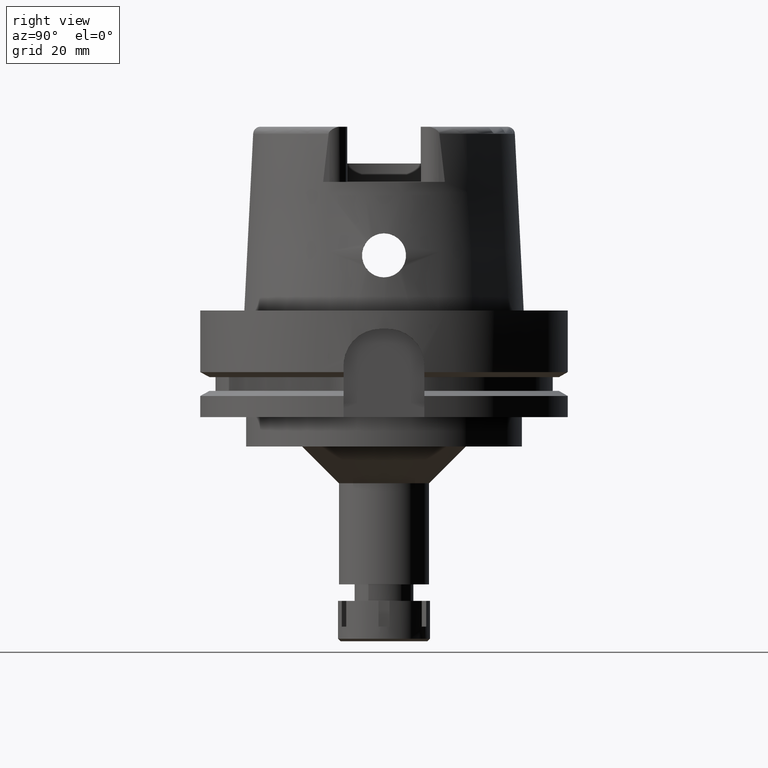
[diagram: clean part render]
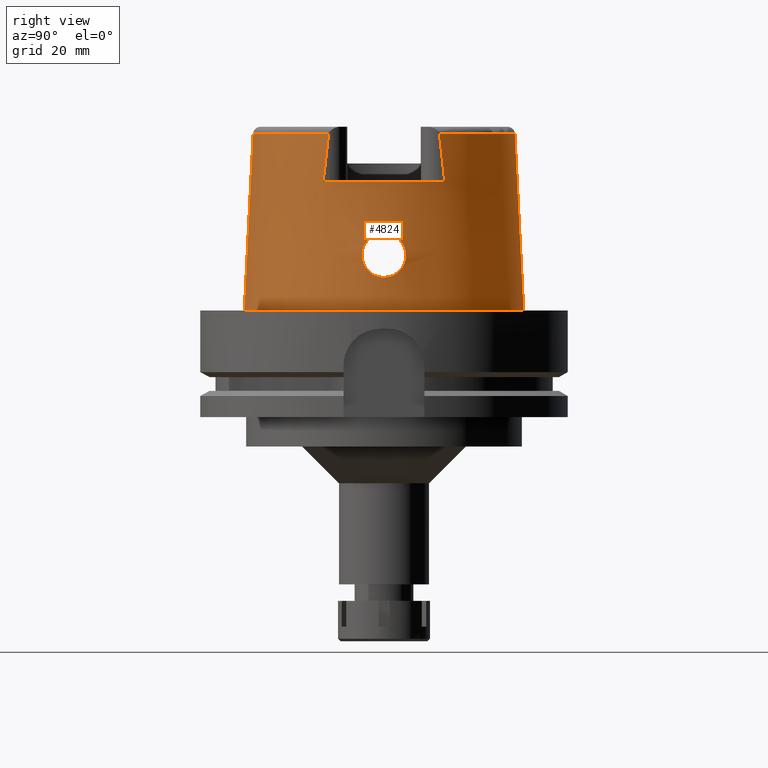
[diagram: same view with one face highlighted and labeled with its STEP entity id]
A machine part, right view. The second image highlights one B-rep face of the part: STEP entity #4824.
In plain terms, the highlighted conical surface has half-angle 2.862 deg.
Its self-contained STEP definition (entity closure, byte-faithful):
#77 = DIRECTION ( 'NONE',  ( 0.8896561898442558736, 0.4566309931134779343, 0.0000000000000000000 ) ) ;
#141 = CARTESIAN_POINT ( 'NONE',  ( 36.87510568528956156, -2.867921148474099180, 20.27112333804880606 ) ) ;
#154 = CARTESIAN_POINT ( 'NONE',  ( 37.12324310564908814, -4.789563883911494457, 11.38077917507069792 ) ) ;
#163 = EDGE_CURVE ( 'NONE', #2428, #5601, #1936, .T. ) ;
#170 = CARTESIAN_POINT ( 'NONE',  ( 36.94998175922999195, -0.3619957960759580540, 21.00000000000000000 ) ) ;
#180 = CARTESIAN_POINT ( 'NONE',  ( 37.45542763583186741, -2.313118659853023118, 9.463792031148898332 ) ) ;
#194 = FACE_OUTER_BOUND ( 'NONE', #6061, .T. ) ;
#196 = CARTESIAN_POINT ( 'NONE',  ( 36.94998175923000616, -1.503990973344999703E-13, 21.00000000000000000 ) ) ;
#217 = CARTESIAN_POINT ( 'NONE',  ( 36.79213157172636528, 4.272168108601569259, 19.21292434691662265 ) ) ;
#247 = CARTESIAN_POINT ( 'NONE',  ( 37.10023334212446855, -4.905686745124796744, 11.53980937854916178 ) ) ;
#249 = CARTESIAN_POINT ( 'NONE',  ( 36.71869329248551139, 5.559030512054177642, 17.25770219930892324 ) ) ;
#273 = CARTESIAN_POINT ( 'NONE',  ( 37.45609218766599469, -2.305072519766584893, 9.460432833566226662 ) ) ;
#275 = CARTESIAN_POINT ( 'NONE',  ( 36.76644587471733416, 5.999796935777381712, 14.94565446289353794 ) ) ;
#305 = CARTESIAN_POINT ( 'NONE',  ( 37.43511764613177917, 2.564155097634758906, 9.566369468687444311 ) ) ;
#308 = AXIS2_PLACEMENT_3D ( 'NONE', #3232, #1900, #6035 ) ;
#314 = CARTESIAN_POINT ( 'NONE',  ( 36.72635265086371703, -5.354262614102590412, 17.70928540680619179 ) ) ;
#338 = CARTESIAN_POINT ( 'NONE',  ( 36.71850329050704431, 5.566110551745376611, 17.24024313708200395 ) ) ;
#397 = CARTESIAN_POINT ( 'NONE',  ( 36.88060498897873885, 2.762870453830920336, 20.32695001291810399 ) ) ;
#412 = VERTEX_POINT ( 'NONE', #5212 ) ;
#489 = CARTESIAN_POINT ( 'NONE',  ( 36.93364686104936823, 1.521794606527888005, 20.86577857643298373 ) ) ;
#572 = CARTESIAN_POINT ( 'NONE',  ( 36.91975683065913927, -1.803380373274453108, 20.72347456111721087 ) ) ;
#588 = CARTESIAN_POINT ( 'NONE',  ( 37.49298468589362443, 1.800810631765409564, 9.275760621238262615 ) ) ;
#622 = CARTESIAN_POINT ( 'NONE',  ( 37.47166271393952286, 2.108246820999361670, 9.382194666619161794 ) ) ;
#637 = CIRCLE ( 'NONE', #3901, 36.24995854370000359 ) ;
#653 = CARTESIAN_POINT ( 'NONE',  ( 37.15793710237721825, -4.604089913438056847, 11.15136043992221104 ) ) ;
#667 = FACE_BOUND ( 'NONE', #3726, .T. ) ;
#680 = CARTESIAN_POINT ( 'NONE',  ( 37.21442222119262055, -4.283047647266331026, 10.79813055659743348 ) ) ;
#708 = CIRCLE ( 'NONE', #308, 35.59494289391000166 ) ;
#714 = CARTESIAN_POINT ( 'NONE',  ( 36.93702880653762577, -5.595001639895444079, 12.83270709487426409 ) ) ;
#716 = CARTESIAN_POINT ( 'NONE',  ( 37.45914414086023214, 2.268059607255038301, 9.445188586051832758 ) ) ;
#744 = CARTESIAN_POINT ( 'NONE',  ( 37.45127339181760107, -2.362942873076104622, 9.484809666370283665 ) ) ;
#746 = CARTESIAN_POINT ( 'NONE',  ( 36.74869335884689292, 4.954872332292026726, 18.38930122851257565 ) ) ;
#765 = CARTESIAN_POINT ( 'NONE',  ( 0.002482252536764999965, 35.59494263424999616, 48.09987853799000135 ) ) ;
#769 = CARTESIAN_POINT ( 'NONE',  ( 37.22725243886446123, 4.205180857240062409, 10.72022105081846277 ) ) ;
#778 = CARTESIAN_POINT ( 'NONE',  ( 36.85146511345456588, -3.308966708110201438, 20.00509184972748855 ) ) ;
#800 = CARTESIAN_POINT ( 'NONE',  ( 36.95655003092205959, 5.524034376255835710, 12.65782977335243764 ) ) ;
#833 = CARTESIAN_POINT ( 'NONE',  ( 37.20122744902486289, 4.364485073593012743, 10.87819476469458202 ) ) ;
#858 = CARTESIAN_POINT ( 'NONE',  ( 36.89704417756966137, 2.400057402262153250, 20.49912398360778809 ) ) ;
#868 = ORIENTED_EDGE ( 'NONE', *, *, #1358, .T. ) ;
#932 = B_SPLINE_CURVE_WITH_KNOTS ( 'NONE', 3,
 ( #196, #170, #2521, #2027, #4448, #572, #2056, #5819, #4421, #4391, #1998, #3890, #3945, #2087, #2547, #141, #1032, #3920, #2922, #1097, #5848, #778, #1560, #4821, #1590, #1536, #2944, #3448, #3486, #2655, #4911, #4093, #4567, #5884, #1624, #3599, #314, #2207, #1502, #2460, #3393, #4355, #3423, #5320, #1062, #1738, #3154, #5998, #3627, #5527, #1268, #2136, #4026, #1607, #3500, #5866, #3558, #1200, #4408, #5398, #1548, #4923, #714, #2533, #1141, #2504, #4465, #1664, #4498, #2591, #5831, #2105, #5426, #2993, #2163, #4896, #3436, #247, #154, #653, #3027, #5456, #4525, #1572, #5926, #680, #3467, #3086, #2960, #3932, #5366, #4986, #2622, #4953, #744, #2040, #180, #273, #4433, #2069, #5807 ),
 .UNSPECIFIED., .F., .F.,
 ( 4, 2, 2, 1, 1, 1, 1, 2, 2, 2, 2, 1, 1, 2, 2, 2, 1, 1, 1, 2, 2, 2, 2, 2, 1, 1, 2, 2, 2, 2, 1, 1, 2, 2, 2, 2, 2, 1, 1, 1, 2, 2, 2, 2, 1, 1, 2, 2, 2, 1, 1, 1, 2, 2, 2, 2, 2, 1, 1, 2, 2, 4 ),
 ( 0.0000000000000000000, 0.06250000000000789646, 0.09375000000001190714, 0.1093750000000140027, 0.1171875000000150713, 0.1210937500000155986, 0.1230468750000160150, 0.1240234375000161676, 0.1250000000000163203, 0.1562500000000212330, 0.1718750000000237033, 0.1796875000000248135, 0.1835937500000253686, 0.1855468750000256184, 0.1875000000000258682, 0.2187500000000260347, 0.2343750000000261180, 0.2421875000000263678, 0.2460937500000265066, 0.2480468750000268119, 0.2500000000000270894, 0.3125000000000368594, 0.3437500000000417444, 0.3593750000000441869, 0.3671875000000454081, 0.3710937500000463518, 0.3730468750000465183, 0.3750000000000466849, 0.4375000000000568989, 0.4687500000000620060, 0.4843750000000645040, 0.4921875000000658362, 0.4960937500000666689, 0.5000000000000675016, 0.5625000000000757172, 0.5937500000000798250, 0.6093750000000820455, 0.6171875000000831557, 0.6210937500000837108, 0.6230468750000838218, 0.6240234375000838218, 0.6250000000000838218, 0.6562500000000810463, 0.6718750000000796030, 0.6796875000000789369, 0.6835937500000788258, 0.6855468750000786038, 0.6875000000000783817, 0.7187500000000739409, 0.7343750000000714984, 0.7421875000000703881, 0.7460937500000695000, 0.7480468750000690559, 0.7500000000000686118, 0.8125000000000538458, 0.8437500000000464073, 0.8593750000000428546, 0.8671875000000409672, 0.8710937500000399680, 0.8730468750000394129, 0.8750000000000387468, 1.000000000000000000 ),
 .UNSPECIFIED. ) ;
#935 = CARTESIAN_POINT ( 'NONE',  ( 1.065814103639999922E-14, -35.59494289391000166, 48.09987853799000135 ) ) ;
#1017 = VERTEX_POINT ( 'NONE', #2832 ) ;
#1019 = CARTESIAN_POINT ( 'NONE',  ( 37.46066578811886671, 2.249183322697205334, 9.437517248572310891 ) ) ;
#1032 = CARTESIAN_POINT ( 'NONE',  ( 36.87051755446928070, -2.957919471459345750, 20.22131994841772951 ) ) ;
#1062 = CARTESIAN_POINT ( 'NONE',  ( 36.71469326944825440, -5.691817995966355959, 16.94021587102403714 ) ) ;
#1097 = CARTESIAN_POINT ( 'NONE',  ( 36.85482552239167120, -3.249222678345213389, 20.04420110382978137 ) ) ;
#1141 = CARTESIAN_POINT ( 'NONE',  ( 36.94375646549933379, -5.570880565377989591, 12.77169730035828543 ) ) ;
#1157 = CARTESIAN_POINT ( 'NONE',  ( 32.25000552016999222, -15.06439823524999966, 48.10004215963999741 ) ) ;
#1172 = CARTESIAN_POINT ( 'NONE',  ( 36.71650721641735515, 5.720922316120033102, 16.81132266923553686 ) ) ;
#1200 = CARTESIAN_POINT ( 'NONE',  ( 36.86736156899247163, -5.820090946679147947, 13.52770402250603787 ) ) ;
#1202 = CARTESIAN_POINT ( 'NONE',  ( 36.99113571959950519, 5.390448420553337172, 12.36170958763496586 ) ) ;
#1223 = EDGE_CURVE ( 'NONE', #1017, #3822, #3824, .T. ) ;
#1233 = CARTESIAN_POINT ( 'NONE',  ( 36.74473362650238073, 6.000569354852503423, 15.37171637843477079 ) ) ;
#1242 = VERTEX_POINT ( 'NONE', #4700 ) ;
#1260 = CARTESIAN_POINT ( 'NONE',  ( 36.77644921234563213, 5.995490992558952570, 14.76287882098359283 ) ) ;
#1268 = CARTESIAN_POINT ( 'NONE',  ( 36.75417964470409515, -5.997110635134648149, 15.19651862932476583 ) ) ;
#1292 = CARTESIAN_POINT ( 'NONE',  ( 36.75594477063909693, 4.837093988785125198, 18.55639154270879843 ) ) ;
#1307 = DIRECTION ( 'NONE',  ( 0.0000000000000000000, -1.000000000000000000, 0.0000000000000000000 ) ) ;
#1358 = EDGE_CURVE ( 'NONE', #1017, #5215, #637, .T. ) ;
#1370 = B_SPLINE_CURVE_WITH_KNOTS ( 'NONE', 3,
 ( #2996, #2561, #2474, #3845, #5744, #588, #4868, #622, #3378, #5277, #1019, #2107, #716, #305, #4052, #5960, #5458, #4083, #3056, #4955, #5903, #5928, #1666, #769, #6019, #3560, #833, #5549, #4527, #3145, #3119, #1697, #4988, #1202, #5988, #3588, #3181, #800, #5047, #2199, #2624, #5492, #4589, #2679, #1260, #2593, #3999, #275, #2165, #1233, #5019, #2227, #3088, #1172, #4500, #4117, #1758, #338, #249, #3649, #2648, #5520, #4554, #746, #1292, #2138, #1730, #3620, #5079, #1643, #3529, #4467, #217, #4029, #5428, #4679, #5174, #3339, #2804, #6115, #4273, #397, #4733, #6049, #858, #4648, #5675, #489, #2287, #1789 ),
 .UNSPECIFIED., .F., .F.,
 ( 4, 2, 2, 1, 1, 1, 1, 2, 2, 2, 2, 2, 1, 1, 1, 2, 2, 2, 2, 2, 1, 1, 2, 2, 2, 2, 2, 1, 2, 2, 2, 2, 1, 1, 1, 1, 2, 2, 2, 2, 2, 1, 1, 2, 2, 2, 2, 2, 2, 1, 1, 2, 2, 4 ),
 ( 0.0000000000000000000, 0.06249999999999684974, 0.09374999999999528155, 0.1093749999999945599, 0.1171874999999941713, 0.1210937499999939632, 0.1230468749999939077, 0.1240234374999939077, 0.1249999999999938938, 0.1874999999999920064, 0.2187499999999911737, 0.2343749999999906186, 0.2421874999999904243, 0.2460937499999904521, 0.2480468749999904798, 0.2490234374999904798, 0.2499999999999904521, 0.2812499999999927836, 0.3124999999999950595, 0.3437499999999973910, 0.3593749999999986677, 0.3671874999999992784, 0.3710937499999995559, 0.3749999999999998335, 0.4375000000000047740, 0.4687500000000071609, 0.4843750000000084377, 0.4921875000000088818, 0.4960937500000091038, 0.5000000000000092149, 0.5625000000000123235, 0.5937500000000139888, 0.6093750000000146549, 0.6171875000000149880, 0.6210937500000148770, 0.6230468750000148770, 0.6240234375000146549, 0.6250000000000143219, 0.6875000000000103251, 0.7187500000000083267, 0.7343750000000071054, 0.7421875000000064393, 0.7460937500000061062, 0.7480468750000059952, 0.7500000000000058842, 0.7812500000000039968, 0.7968750000000031086, 0.8125000000000022204, 0.8437500000000001110, 0.8593749999999988898, 0.8671874999999983347, 0.8710937499999983347, 0.8749999999999982236, 1.000000000000000000 ),
 .UNSPECIFIED. ) ;
#1442 = DIRECTION ( 'NONE',  ( 0.0000000000000000000, 0.0000000000000000000, -1.000000000000000000 ) ) ;
#1453 = EDGE_CURVE ( 'NONE', #412, #4019, #932, .T. ) ;
#1502 = CARTESIAN_POINT ( 'NONE',  ( 36.72229875369301766, -5.450485411258491730, 17.50881628358775188 ) ) ;
#1536 = CARTESIAN_POINT ( 'NONE',  ( 36.81751342561467766, -3.881417746495720245, 19.57648543313212386 ) ) ;
#1548 = CARTESIAN_POINT ( 'NONE',  ( 36.92004393810658769, -5.654050129710538997, 12.99142178715640128 ) ) ;
#1560 = CARTESIAN_POINT ( 'NONE',  ( 36.85068188638916808, -3.322783065361028410, 19.99592464458171293 ) ) ;
#1572 = CARTESIAN_POINT ( 'NONE',  ( 37.21027935184327617, -4.307403958535037880, 10.82310854367652908 ) ) ;
#1573 = ORIENTED_EDGE ( 'NONE', *, *, #163, .T. ) ;
#1590 = CARTESIAN_POINT ( 'NONE',  ( 36.83150950005524038, -3.653900776602983846, 19.76313968771335894 ) ) ;
#1607 = CARTESIAN_POINT ( 'NONE',  ( 36.76100481118548657, -5.999809252842489116, 15.05283728802015908 ) ) ;
#1624 = CARTESIAN_POINT ( 'NONE',  ( 36.73766463926336456, -5.131446075888652203, 18.11550065449993596 ) ) ;
#1643 = CARTESIAN_POINT ( 'NONE',  ( 36.78813159064665683, 4.333712999997374915, 19.14974256436262223 ) ) ;
#1662 = LINE ( 'NONE', #765, #3766 ) ;
#1664 = CARTESIAN_POINT ( 'NONE',  ( 36.96369188005012774, -5.498565654212860920, 12.59303540589860404 ) ) ;
#1666 = CARTESIAN_POINT ( 'NONE',  ( 37.22979725338039714, 4.189482004009348337, 10.70481477306568330 ) ) ;
#1697 = CARTESIAN_POINT ( 'NONE',  ( 37.04066018823725415, 5.181321562878633102, 11.96800026464162592 ) ) ;
#1730 = CARTESIAN_POINT ( 'NONE',  ( 36.77293719376553582, 4.569031066488181914, 18.89053646351799642 ) ) ;
#1738 = CARTESIAN_POINT ( 'NONE',  ( 36.71595089794639932, -5.806945274500611376, 16.55939232804291095 ) ) ;
#1758 = CARTESIAN_POINT ( 'NONE',  ( 36.71809035115517617, 5.582428472258630592, 17.19945325305581818 ) ) ;
#1789 = CARTESIAN_POINT ( 'NONE',  ( 36.94998175923000616, -1.503990973344999703E-13, 21.00000000000000000 ) ) ;
#1803 = ORIENTED_EDGE ( 'NONE', *, *, #1223, .F. ) ;
#1843 = CARTESIAN_POINT ( 'NONE',  ( 32.25000000000000000, 16.05167221545556799, 39.57715427189049961 ) ) ;
#1900 = DIRECTION ( 'NONE',  ( 0.0000000000000000000, 0.0000000000000000000, -1.000000000000000000 ) ) ;
#1904 = CARTESIAN_POINT ( 'NONE',  ( 0.0000000000000000000, 0.0000000000000000000, 35.00000000000000000 ) ) ;
#1924 = CARTESIAN_POINT ( 'NONE',  ( 0.0000000000000000000, 0.0000000000000000000, 1.023181539494999863E-12 ) ) ;
#1936 = CIRCLE ( 'NONE', #2235, 38.00001658251999714 ) ;
#1978 = CARTESIAN_POINT ( 'NONE',  ( 0.0000000000000000000, -38.00001658251999714, 6.110667527536999933E-13 ) ) ;
#1998 = CARTESIAN_POINT ( 'NONE',  ( 36.90262445171364192, -2.267037386275783994, 20.55523040119470934 ) ) ;
#2027 = CARTESIAN_POINT ( 'NONE',  ( 36.93386179732552677, -1.316545214283539433, 20.85705519463768809 ) ) ;
#2040 = CARTESIAN_POINT ( 'NONE',  ( 37.45377422591175076, -2.333031304431601338, 9.472153987177931000 ) ) ;
#2056 = CARTESIAN_POINT ( 'NONE',  ( 36.91484527976633245, -1.949867970981501442, 20.67598764615056695 ) ) ;
#2069 = CARTESIAN_POINT ( 'NONE',  ( 37.55000165824999669, -0.7498568301954098292, 9.000000000000000000 ) ) ;
#2087 = CARTESIAN_POINT ( 'NONE',  ( 36.89539336319965201, -2.441990894998771200, 20.48299464529334912 ) ) ;
#2105 = CARTESIAN_POINT ( 'NONE',  ( 37.04548655014357195, -5.160189826023525050, 11.93809804773227157 ) ) ;
#2107 = CARTESIAN_POINT ( 'NONE',  ( 37.45972292933118553, 2.260901983110601865, 9.442270049579917668 ) ) ;
#2136 = CARTESIAN_POINT ( 'NONE',  ( 36.75751479705868974, -5.998739067720263662, 15.12527111230812160 ) ) ;
#2138 = CARTESIAN_POINT ( 'NONE',  ( 36.76848162135542708, 4.638753552734988794, 18.80700870006051773 ) ) ;
#2163 = CARTESIAN_POINT ( 'NONE',  ( 37.07078708258733712, -5.044506683325496788, 11.75143877483502486 ) ) ;
#2165 = CARTESIAN_POINT ( 'NONE',  ( 36.76533060439346912, 5.999957116569681226, 14.96712101523977623 ) ) ;
#2169 = CARTESIAN_POINT ( 'NONE',  ( 32.25000000000000000, -16.05145952679465893, 39.57800536347976106 ) ) ;
#2199 = CARTESIAN_POINT ( 'NONE',  ( 36.87074489140349698, 5.816387420800599450, 13.47497642213122759 ) ) ;
#2207 = CARTESIAN_POINT ( 'NONE',  ( 36.72457088229252520, -5.394204270357435327, 17.62875669132850120 ) ) ;
#2227 = CARTESIAN_POINT ( 'NONE',  ( 36.71998684564552917, 5.852987738923694394, 16.33448464957395174 ) ) ;
#2235 = AXIS2_PLACEMENT_3D ( 'NONE', #1924, #2938, #3819 ) ;
#2287 = CARTESIAN_POINT ( 'NONE',  ( 36.94998175922999195, 0.7281337594150610881, 21.00000000000000355 ) ) ;
#2394 = CONICAL_SURFACE ( 'NONE', #3278, 36.79747973821000073, 0.04996004983832824653 ) ;
#2428 = VERTEX_POINT ( 'NONE', #1978 ) ;
#2460 = CARTESIAN_POINT ( 'NONE',  ( 36.72126282045758217, -5.477718280693583353, 17.44905882064225722 ) ) ;
#2474 = CARTESIAN_POINT ( 'NONE',  ( 37.54239939526915038, 0.7523871400035275769, 9.034698714963223409 ) ) ;
#2504 = CARTESIAN_POINT ( 'NONE',  ( 36.94511171800346716, -5.565985522195274093, 12.75949818976878092 ) ) ;
#2521 = CARTESIAN_POINT ( 'NONE',  ( 36.94595176875389342, -0.7391757339022408946, 20.96717409261293597 ) ) ;
#2533 = CARTESIAN_POINT ( 'NONE',  ( 36.94172829031337102, -5.578188814374183124, 12.78999743956816282 ) ) ;
#2546 = CARTESIAN_POINT ( 'NONE',  ( 0.0000000000000000000, 0.0000000000000000000, 24.04993926899999934 ) ) ;
#2547 = CARTESIAN_POINT ( 'NONE',  ( 36.88798575235327348, -2.605924450759732558, 20.40814289678849391 ) ) ;
#2561 = CARTESIAN_POINT ( 'NONE',  ( 37.55000165824999669, 0.3720094323443617346, 9.000000000000001776 ) ) ;
#2585 = ORIENTED_EDGE ( 'NONE', *, *, #2722, .T. ) ;
#2591 = CARTESIAN_POINT ( 'NONE',  ( 37.01592580708611990, -5.288929920549716002, 12.16505936774129637 ) ) ;
#2593 = CARTESIAN_POINT ( 'NONE',  ( 36.77253364898371046, 5.997946918031386687, 14.83181688960138622 ) ) ;
#2622 = CARTESIAN_POINT ( 'NONE',  ( 37.43991846372684762, -2.493577216852496115, 9.542521228685155066 ) ) ;
#2624 = CARTESIAN_POINT ( 'NONE',  ( 36.82333716367376297, 5.928692379447013217, 14.05680248337757376 ) ) ;
#2626 = CARTESIAN_POINT ( 'NONE',  ( 32.25000552016999222, -15.06439823524999966, 48.10004215963999741 ) ) ;
#2648 = CARTESIAN_POINT ( 'NONE',  ( 36.71890304356127643, 5.551419234550252213, 17.27635000832367140 ) ) ;
#2655 = CARTESIAN_POINT ( 'NONE',  ( 36.79646108978619878, -4.206765109428718397, 19.27823300766588943 ) ) ;
#2679 = CARTESIAN_POINT ( 'NONE',  ( 36.78458963177784824, 5.988939880956858808, 14.62429548331273210 ) ) ;
#2722 = EDGE_CURVE ( 'NONE', #4995, #2428, #5704, .T. ) ;
#2759 = AXIS2_PLACEMENT_3D ( 'NONE', #3645, #3084, #4496 ) ;
#2763 = VECTOR ( 'NONE', #4210, 1000.000000000000227 ) ;
#2804 = CARTESIAN_POINT ( 'NONE',  ( 36.84414031916394805, 3.434188628632092399, 19.92095102850218780 ) ) ;
#2829 = CARTESIAN_POINT ( 'NONE',  ( 37.55000165825000380, 0.0000000000000000000, 9.000000000000000000 ) ) ;
#2832 = CARTESIAN_POINT ( 'NONE',  ( 32.25000000000000000, 16.55285457013000183, 35.00000000000000000 ) ) ;
#2854 = CARTESIAN_POINT ( 'NONE',  ( 32.25000000000000000, 16.55285457013000183, 35.00000000000000000 ) ) ;
#2922 = CARTESIAN_POINT ( 'NONE',  ( 36.85942047540125799, -3.166260147355448584, 20.09708265171070707 ) ) ;
#2938 = DIRECTION ( 'NONE',  ( 0.0000000000000000000, 0.0000000000000000000, 1.000000000000000000 ) ) ;
#2944 = CARTESIAN_POINT ( 'NONE',  ( 36.81050672247178568, -3.992887029005340427, 19.48036796911684121 ) ) ;
#2960 = CARTESIAN_POINT ( 'NONE',  ( 37.37788463773632941, -3.111606233632493002, 9.865997006762761146 ) ) ;
#2993 = CARTESIAN_POINT ( 'NONE',  ( 37.06591711778076359, -5.067208010715212652, 11.78678244226782290 ) ) ;
#2996 = CARTESIAN_POINT ( 'NONE',  ( 37.55000165825000380, 0.0000000000000000000, 9.000000000000000000 ) ) ;
#3005 = ORIENTED_EDGE ( 'NONE', *, *, #5425, .F. ) ;
#3009 = ORIENTED_EDGE ( 'NONE', *, *, #5291, .T. ) ;
#3027 = CARTESIAN_POINT ( 'NONE',  ( 37.17532893860157373, -4.508532292201325120, 11.03893143908665664 ) ) ;
#3056 = CARTESIAN_POINT ( 'NONE',  ( 37.27607717474921856, 3.889021362254634351, 10.42963272329822466 ) ) ;
#3084 = DIRECTION ( 'NONE',  ( 0.0000000000000000000, 0.0000000000000000000, -1.000000000000000000 ) ) ;
#3086 = CARTESIAN_POINT ( 'NONE',  ( 37.31764933938676876, -3.614567487053337302, 10.19425112677171441 ) ) ;
#3088 = CARTESIAN_POINT ( 'NONE',  ( 36.71770561783424114, 5.806054577640806791, 16.52613828931820805 ) ) ;
#3119 = CARTESIAN_POINT ( 'NONE',  ( 37.06323768315785117, 5.079516437016867059, 11.80062850989132883 ) ) ;
#3128 = ORIENTED_EDGE ( 'NONE', *, *, #5208, .F. ) ;
#3145 = CARTESIAN_POINT ( 'NONE',  ( 37.10936402151975244, 4.862746932846133241, 11.47989241176633080 ) ) ;
#3154 = CARTESIAN_POINT ( 'NONE',  ( 36.72665326108103301, -5.921754879918755599, 15.98534187245312310 ) ) ;
#3181 = CARTESIAN_POINT ( 'NONE',  ( 36.95903763507286754, 5.514738911820622924, 12.63604379604889161 ) ) ;
#3232 = CARTESIAN_POINT ( 'NONE',  ( 0.0000000000000000000, 0.0000000000000000000, 48.09987853799000135 ) ) ;
#3278 = AXIS2_PLACEMENT_3D ( 'NONE', #2546, #3543, #1307 ) ;
#3339 = CARTESIAN_POINT ( 'NONE',  ( 36.83924848428939214, 3.515906089624298847, 19.86293389144298516 ) ) ;
#3349 = EDGE_CURVE ( 'NONE', #4416, #5215, #3411, .T. ) ;
#3378 = CARTESIAN_POINT ( 'NONE',  ( 37.46532254539884121, 2.190532044321201077, 9.414063647406232249 ) ) ;
#3393 = CARTESIAN_POINT ( 'NONE',  ( 36.72022946104544872, -5.507950509529384142, 17.37976665700274381 ) ) ;
#3411 = B_SPLINE_CURVE_WITH_KNOTS ( 'NONE', 3,
 ( #2626, #5554, #2169, #4621 ),
 .UNSPECIFIED., .F., .F.,
 ( 4, 4 ),
 ( 0.0000000000000000000, 1.000000000000000000 ),
 .UNSPECIFIED. ) ;
#3423 = CARTESIAN_POINT ( 'NONE',  ( 36.71956227335024892, -5.528932478870464351, 17.33045493622808308 ) ) ;
#3436 = CARTESIAN_POINT ( 'NONE',  ( 37.07591250898372692, -5.020474724176181347, 11.71442780572052733 ) ) ;
#3448 = CARTESIAN_POINT ( 'NONE',  ( 36.80231707010709385, -4.118693956119912514, 19.36355019143649514 ) ) ;
#3467 = CARTESIAN_POINT ( 'NONE',  ( 37.27042031544899459, -3.952193633303177744, 10.46248648768648515 ) ) ;
#3486 = CARTESIAN_POINT ( 'NONE',  ( 36.79821845258365443, -4.180509103200208187, 19.30399769185995140 ) ) ;
#3500 = CARTESIAN_POINT ( 'NONE',  ( 36.78000337472929004, -6.001741576189012051, 14.67162898336501264 ) ) ;
#3529 = CARTESIAN_POINT ( 'NONE',  ( 36.79007473025039587, 4.303803830335991343, 19.18060747144735956 ) ) ;
#3543 = DIRECTION ( 'NONE',  ( 0.0000000000000000000, 0.0000000000000000000, -1.000000000000000000 ) ) ;
#3558 = CARTESIAN_POINT ( 'NONE',  ( 36.85039364199745648, -5.865463668614858683, 13.72158246052484998 ) ) ;
#3560 = CARTESIAN_POINT ( 'NONE',  ( 37.22455294318589125, 4.221769142459438129, 10.73658559071348506 ) ) ;
#3588 = CARTESIAN_POINT ( 'NONE',  ( 36.96434810774898949, 5.494700871540992182, 12.58983475005673291 ) ) ;
#3599 = CARTESIAN_POINT ( 'NONE',  ( 36.73249900509185295, -5.226737886865389981, 17.95205577305791422 ) ) ;
#3620 = CARTESIAN_POINT ( 'NONE',  ( 36.78003548563769698, 4.458770564786936674, 19.01527642457077860 ) ) ;
#3627 = CARTESIAN_POINT ( 'NONE',  ( 36.74144917728482795, -5.979358484566408727, 15.50647746329624255 ) ) ;
#3645 = CARTESIAN_POINT ( 'NONE',  ( 0.0000000000000000000, 0.0000000000000000000, 48.09987853799000135 ) ) ;
#3649 = CARTESIAN_POINT ( 'NONE',  ( 36.71882285557567371, 5.554291231602491052, 17.26933654825751674 ) ) ;
#3726 = EDGE_LOOP ( 'NONE', ( #3005, #5715 ) ) ;
#3738 = CARTESIAN_POINT ( 'NONE',  ( 32.25000000000000000, 15.55558142645801389, 43.94359181286984040 ) ) ;
#3766 = VECTOR ( 'NONE', #5984, 1000.000000000000227 ) ;
#3819 = DIRECTION ( 'NONE',  ( 0.0000000000000000000, -1.000000000000000000, 0.0000000000000000000 ) ) ;
#3822 = VERTEX_POINT ( 'NONE', #4804 ) ;
#3824 = B_SPLINE_CURVE_WITH_KNOTS ( 'NONE', 3,
 ( #2854, #1843, #3738, #4671 ),
 .UNSPECIFIED., .F., .F.,
 ( 4, 4 ),
 ( 0.0000000000000000000, 1.000000000000000000 ),
 .UNSPECIFIED. ) ;
#3844 = ORIENTED_EDGE ( 'NONE', *, *, #4575, .T. ) ;
#3845 = CARTESIAN_POINT ( 'NONE',  ( 37.51959260632657589, 1.324586935256681475, 9.144814613663085012 ) ) ;
#3890 = CARTESIAN_POINT ( 'NONE',  ( 36.90212463844169832, -2.279219866749546686, 20.55024324873642882 ) ) ;
#3901 = AXIS2_PLACEMENT_3D ( 'NONE', #1904, #1442, #77 ) ;
#3920 = CARTESIAN_POINT ( 'NONE',  ( 36.86319319554031892, -3.096257732772171867, 20.13965518815166433 ) ) ;
#3932 = CARTESIAN_POINT ( 'NONE',  ( 37.39619503092665553, -2.944433861996706092, 9.768850753716709079 ) ) ;
#3945 = CARTESIAN_POINT ( 'NONE',  ( 36.90181651446399513, -2.286694147586776360, 20.54716646612870434 ) ) ;
#3999 = CARTESIAN_POINT ( 'NONE',  ( 36.76885005515303817, 5.999212934037368328, 14.90019579144267325 ) ) ;
#4019 = VERTEX_POINT ( 'NONE', #2829 ) ;
#4026 = CARTESIAN_POINT ( 'NONE',  ( 36.75978414821377527, -5.999542362005236384, 15.07781195715894285 ) ) ;
#4029 = CARTESIAN_POINT ( 'NONE',  ( 36.80172410866816080, 4.124745696684962049, 19.36180691828893785 ) ) ;
#4052 = CARTESIAN_POINT ( 'NONE',  ( 37.40371185192022097, 2.883064471371674209, 9.723408354825673783 ) ) ;
#4083 = CARTESIAN_POINT ( 'NONE',  ( 37.28828740085033644, 3.804156717710460711, 10.35887313566587764 ) ) ;
#4093 = CARTESIAN_POINT ( 'NONE',  ( 36.79477392984951933, -4.231871260423404557, 19.25340503305034545 ) ) ;
#4117 = CARTESIAN_POINT ( 'NONE',  ( 36.71738606684289152, 5.614255614497713154, 17.11767078159417466 ) ) ;
#4210 = DIRECTION ( 'NONE',  ( 5.154182075151068004E-05, -0.04993927430816067631, -0.9987522546783135224 ) ) ;
#4273 = CARTESIAN_POINT ( 'NONE',  ( 36.86759028586861575, 3.024867785916058427, 20.18551571368242747 ) ) ;
#4355 = CARTESIAN_POINT ( 'NONE',  ( 36.71982414187512944, -5.520582611773431125, 17.35016641799754211 ) ) ;
#4391 = CARTESIAN_POINT ( 'NONE',  ( 36.90337121996839898, -2.248761474587708697, 20.56267691889588178 ) ) ;
#4408 = CARTESIAN_POINT ( 'NONE',  ( 36.89522168743611985, -5.735584228027722276, 13.23553065160087883 ) ) ;
#4416 = VERTEX_POINT ( 'NONE', #1157 ) ;
#4421 = CARTESIAN_POINT ( 'NONE',  ( 36.90509301765713701, -2.206103320786835020, 20.57981306730672344 ) ) ;
#4433 = CARTESIAN_POINT ( 'NONE',  ( 37.51902121434599735, -1.536539547845464870, 9.142559099340362039 ) ) ;
#4448 = CARTESIAN_POINT ( 'NONE',  ( 36.92882430923040005, -1.510886550779304782, 20.81021420608084327 ) ) ;
#4465 = CARTESIAN_POINT ( 'NONE',  ( 36.94593354264117835, -5.563008969379699131, 12.75212138670093687 ) ) ;
#4467 = CARTESIAN_POINT ( 'NONE',  ( 36.79137880109572478, 4.283741967421152097, 19.20116186273404324 ) ) ;
#4496 = DIRECTION ( 'NONE',  ( 0.9060280460804950309, -0.4232176505245974218, 0.0000000000000000000 ) ) ;
#4498 = CARTESIAN_POINT ( 'NONE',  ( 36.98320793904876780, -5.424007328567180153, 12.42729386223007104 ) ) ;
#4500 = CARTESIAN_POINT ( 'NONE',  ( 36.71646387578395831, 5.674675489801196626, 16.95333954016318501 ) ) ;
#4525 = CARTESIAN_POINT ( 'NONE',  ( 37.20590196794136517, -4.333048633691530149, 10.84960878294981867 ) ) ;
#4527 = CARTESIAN_POINT ( 'NONE',  ( 37.13260759448475312, 4.744917666058865890, 11.32253284212821676 ) ) ;
#4554 = CARTESIAN_POINT ( 'NONE',  ( 36.73025858952622968, 5.269678792129310452, 17.89533694333186276 ) ) ;
#4567 = CARTESIAN_POINT ( 'NONE',  ( 36.77310539229559794, -4.552526689420937522, 18.93290865354369501 ) ) ;
#4575 = EDGE_CURVE ( 'NONE', #1242, #3822, #708, .T. ) ;
#4589 = CARTESIAN_POINT ( 'NONE',  ( 36.79042896834378951, 5.982386631274904332, 14.53096280630431103 ) ) ;
#4621 = CARTESIAN_POINT ( 'NONE',  ( 32.25000000000000000, -16.55285457013000183, 35.00000000000000000 ) ) ;
#4648 = CARTESIAN_POINT ( 'NONE',  ( 36.89902092656748778, 2.353595799442818493, 20.51916904380440698 ) ) ;
#4671 = CARTESIAN_POINT ( 'NONE',  ( 32.24997259589120091, 15.06456613025775049, 48.09965105835720323 ) ) ;
#4679 = CARTESIAN_POINT ( 'NONE',  ( 36.82497904824703028, 3.751276285061031501, 19.68376428706330827 ) ) ;
#4700 = CARTESIAN_POINT ( 'NONE',  ( 0.0000000000000000000, 35.59494289391000166, 48.09987853799000135 ) ) ;
#4733 = CARTESIAN_POINT ( 'NONE',  ( 36.88694745351616433, 2.629377789101481344, 20.39481531231875167 ) ) ;
#4804 = CARTESIAN_POINT ( 'NONE',  ( 32.24997259589120091, 15.06456613025775049, 48.09965105835720323 ) ) ;
#4821 = CARTESIAN_POINT ( 'NONE',  ( 36.84081710722195879, -3.496114853874142003, 19.88013027474489292 ) ) ;
#4824 = ADVANCED_FACE ( 'NONE', ( #194, #667 ), #2394, .T. ) ;
#4868 = CARTESIAN_POINT ( 'NONE',  ( 37.48371942788570976, 1.943124714211182713, 9.321807750881221821 ) ) ;
#4896 = CARTESIAN_POINT ( 'NONE',  ( 37.07405166214348213, -5.029225350455224230, 11.72783098142845581 ) ) ;
#4911 = CARTESIAN_POINT ( 'NONE',  ( 36.79528933404782265, -4.224216295825624634, 19.26100305560438031 ) ) ;
#4923 = CARTESIAN_POINT ( 'NONE',  ( 36.92776153895221825, -5.627671951334974665, 12.91815592061740325 ) ) ;
#4953 = CARTESIAN_POINT ( 'NONE',  ( 37.44529307776674898, -2.433028004471707195, 9.515136183202685061 ) ) ;
#4955 = CARTESIAN_POINT ( 'NONE',  ( 37.25703537267286691, 4.015898777158810162, 10.54177803809420055 ) ) ;
#4986 = CARTESIAN_POINT ( 'NONE',  ( 37.42883772822339949, -2.615244613067827295, 9.599212731753668848 ) ) ;
#4988 = CARTESIAN_POINT ( 'NONE',  ( 37.00752245724699208, 5.322637980005668901, 12.22884431742057210 ) ) ;
#4995 = VERTEX_POINT ( 'NONE', #935 ) ;
#5015 = CARTESIAN_POINT ( 'NONE',  ( 32.25000000000000000, -16.55285457013000183, 35.00000000000000000 ) ) ;
#5019 = CARTESIAN_POINT ( 'NONE',  ( 36.73127740967953514, 5.964787811837203080, 15.75800090205540371 ) ) ;
#5047 = CARTESIAN_POINT ( 'NONE',  ( 36.90894828766816715, 5.699875217655553605, 13.07775765583946104 ) ) ;
#5079 = CARTESIAN_POINT ( 'NONE',  ( 36.78368836488799332, 4.402221592408325002, 19.07750768147953124 ) ) ;
#5174 = CARTESIAN_POINT ( 'NONE',  ( 36.82970701591025176, 3.673790530123900222, 19.74478501139662256 ) ) ;
#5208 = EDGE_CURVE ( 'NONE', #1242, #5601, #1662, .T. ) ;
#5212 = CARTESIAN_POINT ( 'NONE',  ( 36.94998175923000616, -1.503990973344999703E-13, 21.00000000000000000 ) ) ;
#5215 = VERTEX_POINT ( 'NONE', #5015 ) ;
#5277 = CARTESIAN_POINT ( 'NONE',  ( 37.46207450823659713, 2.231599647486463223, 9.430418098017009143 ) ) ;
#5291 = EDGE_CURVE ( 'NONE', #4416, #4995, #5955, .T. ) ;
#5320 = CARTESIAN_POINT ( 'NONE',  ( 36.71945728532590891, -5.532342757612561002, 17.32235679067527556 ) ) ;
#5366 = CARTESIAN_POINT ( 'NONE',  ( 37.42100856132287134, -2.697116224229837655, 9.639569292105630183 ) ) ;
#5398 = CARTESIAN_POINT ( 'NONE',  ( 36.90490976490919905, -5.704675605356082535, 13.13791690217264296 ) ) ;
#5425 = EDGE_CURVE ( 'NONE', #4019, #412, #1370, .T. ) ;
#5426 = CARTESIAN_POINT ( 'NONE',  ( 37.05474219825899240, -5.118651064893880331, 11.86875470426859280 ) ) ;
#5428 = CARTESIAN_POINT ( 'NONE',  ( 36.81092344483644041, 3.979081772942898887, 19.49508563864551292 ) ) ;
#5456 = CARTESIAN_POINT ( 'NONE',  ( 37.19569788045219383, -4.392314461820022053, 10.91199257094721631 ) ) ;
#5458 = CARTESIAN_POINT ( 'NONE',  ( 37.32346515330424097, 3.549888515577284576, 10.15800050165692348 ) ) ;
#5492 = CARTESIAN_POINT ( 'NONE',  ( 36.80918414887503332, 5.955752368378964157, 14.24847055476524460 ) ) ;
#5520 = CARTESIAN_POINT ( 'NONE',  ( 36.72239469805379031, 5.428168569212139971, 17.57621559722856830 ) ) ;
#5527 = CARTESIAN_POINT ( 'NONE',  ( 36.74687974318950978, -5.990330886852645698, 15.36313877878136935 ) ) ;
#5549 = CARTESIAN_POINT ( 'NONE',  ( 37.17845601371499953, 4.496177989761006799, 11.02226297509604791 ) ) ;
#5554 = CARTESIAN_POINT ( 'NONE',  ( 32.25000000000000000, -15.55533875765466334, 43.94468608335976256 ) ) ;
#5601 = VERTEX_POINT ( 'NONE', #5603 ) ;
#5603 = CARTESIAN_POINT ( 'NONE',  ( 0.0000000000000000000, 38.00001658251999714, 1.023181539494999863E-12 ) ) ;
#5672 = CARTESIAN_POINT ( 'NONE',  ( -0.002482252536761000127, -35.59494263424999616, 48.09987853799000135 ) ) ;
#5675 = CARTESIAN_POINT ( 'NONE',  ( 36.89995613355181092, 2.331382027904632448, 20.52859512956898769 ) ) ;
#5704 = LINE ( 'NONE', #5672, #2763 ) ;
#5715 = ORIENTED_EDGE ( 'NONE', *, *, #1453, .F. ) ;
#5742 = ORIENTED_EDGE ( 'NONE', *, *, #3349, .F. ) ;
#5744 = CARTESIAN_POINT ( 'NONE',  ( 37.51008977760053398, 1.515565962901187280, 9.191179000909142971 ) ) ;
#5807 = CARTESIAN_POINT ( 'NONE',  ( 37.55000165825000380, 0.0000000000000000000, 9.000000000000000000 ) ) ;
#5819 = CARTESIAN_POINT ( 'NONE',  ( 36.90845396674564682, -2.120737337161085367, 20.61313250766408345 ) ) ;
#5831 = CARTESIAN_POINT ( 'NONE',  ( 37.02740572635516259, -5.240026445384031284, 12.07539177405478448 ) ) ;
#5848 = CARTESIAN_POINT ( 'NONE',  ( 36.85281480406315069, -3.285036002582438552, 20.02083096322983735 ) ) ;
#5866 = CARTESIAN_POINT ( 'NONE',  ( 36.80430631691474019, -5.971400341267228740, 14.29683588215271151 ) ) ;
#5884 = CARTESIAN_POINT ( 'NONE',  ( 36.75636573583610556, -4.811505868961716281, 18.60579310342635750 ) ) ;
#5903 = CARTESIAN_POINT ( 'NONE',  ( 37.24733285590350818, 4.079231666782388466, 10.59935167651835286 ) ) ;
#5926 = CARTESIAN_POINT ( 'NONE',  ( 37.21319854189996335, -4.290253379222026986, 10.80549442222503309 ) ) ;
#5928 = CARTESIAN_POINT ( 'NONE',  ( 37.23569542547635791, 4.152797570618443679, 10.66920789638616363 ) ) ;
#5955 = CIRCLE ( 'NONE', #2759, 35.59494289391000166 ) ;
#5960 = CARTESIAN_POINT ( 'NONE',  ( 37.34497975380764956, 3.380848463982225383, 10.03930612740603756 ) ) ;
#5984 = DIRECTION ( 'NONE',  ( -5.154182075159067383E-05, 0.04993927430816067631, -0.9987522546783135224 ) ) ;
#5988 = CARTESIAN_POINT ( 'NONE',  ( 36.97233658274414836, 5.464246749620290444, 12.52080108916262091 ) ) ;
#5998 = CARTESIAN_POINT ( 'NONE',  ( 36.73169003552381184, -5.950405997544637948, 15.79350973246571321 ) ) ;
#6019 = CARTESIAN_POINT ( 'NONE',  ( 37.22555211219277282, 4.215641420804846717, 10.73052446931122539 ) ) ;
#6035 = DIRECTION ( 'NONE',  ( 0.0000000000000000000, 1.000000000000000000, 0.0000000000000000000 ) ) ;
#6049 = CARTESIAN_POINT ( 'NONE',  ( 36.89405844319574612, 2.469463352060968120, 20.46865711832907309 ) ) ;
#6061 = EDGE_LOOP ( 'NONE', ( #5742, #3009, #2585, #1573, #3128, #3844, #1803, #868 ) ) ;
#6115 = CARTESIAN_POINT ( 'NONE',  ( 36.85847411841488963, 3.192872638683405206, 20.08362140220116032 ) ) ;